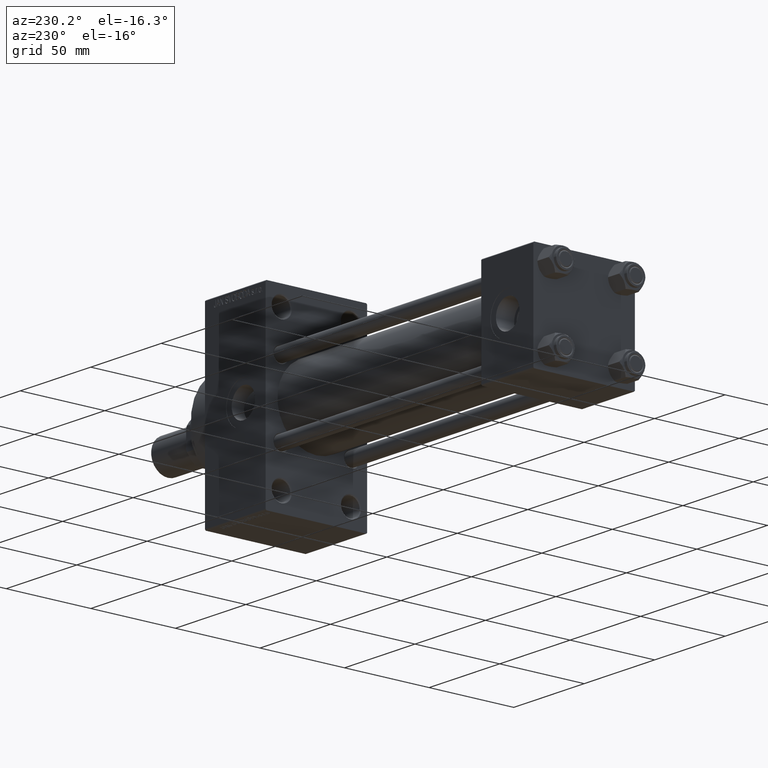
[diagram: clean part render]
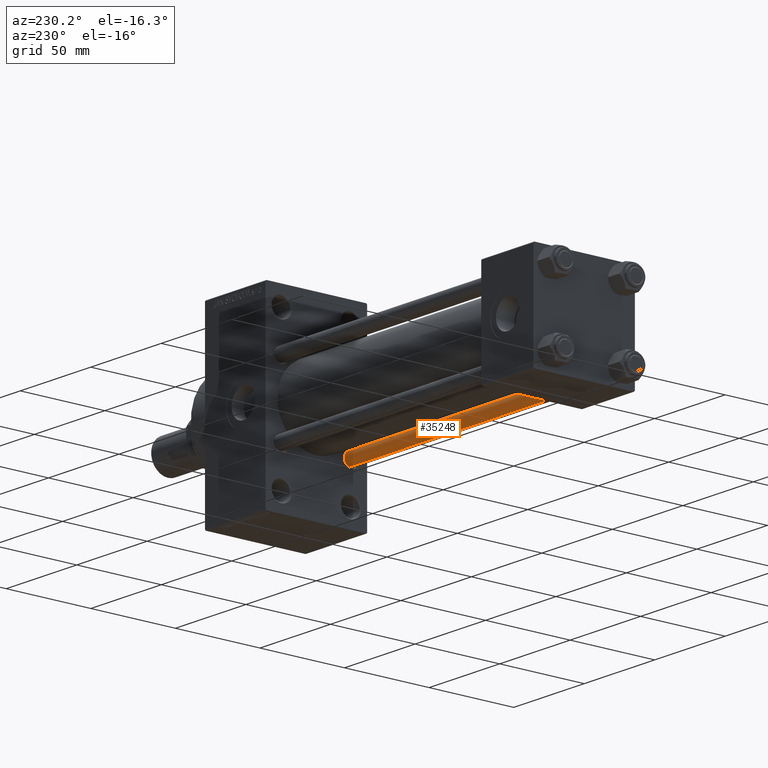
[diagram: same view with one face highlighted and labeled with its STEP entity id]
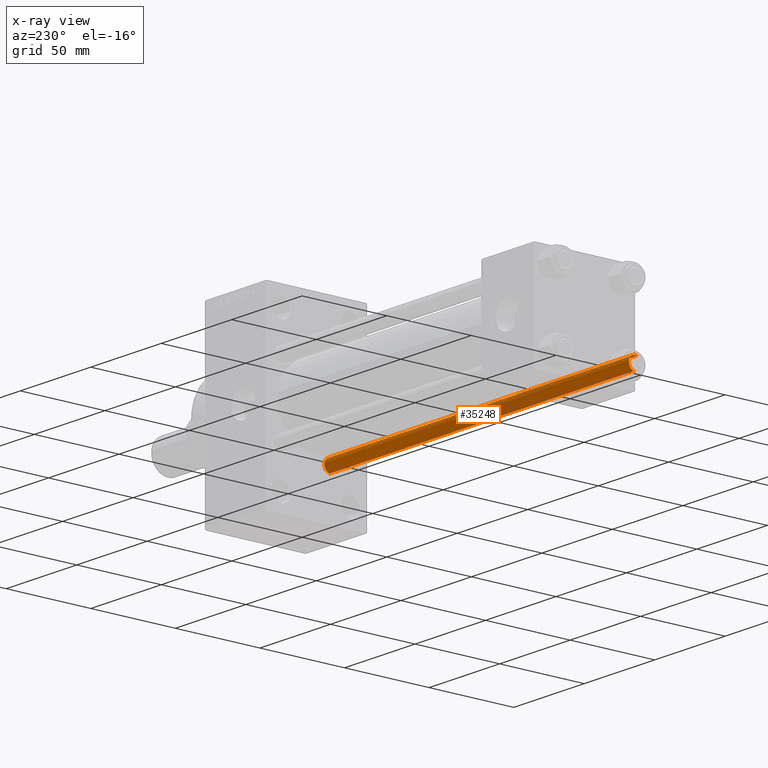
[diagram: x-ray of the same camera — body ghosted, the highlighted face saturated]
A machine part, auxiliary view. The second image highlights one B-rep face of the part: STEP entity #35248.
The next image is the same camera in x-ray: the body ghosted, the highlighted face saturated — about 2% of this face is hidden behind the body in this view.
In plain terms, the highlighted cylindrical surface (edge-blend (fillet) strip) has radius 4 mm, axis along (-1, 0, 0).
Its self-contained STEP definition (entity closure, byte-faithful):
#596 = EDGE_CURVE ( 'NONE', #41019, #8562, #7275, .T. ) ;
#653 = EDGE_CURVE ( 'NONE', #23914, #20469, #35049, .T. ) ;
#2318 = VECTOR ( 'NONE', #10452, 1000.000000000000000 ) ;
#3239 = CARTESIAN_POINT ( 'NONE',  ( 0.000000000000000000, 0.000000000000000000, 0.5000000000000004441 ) ) ;
#3527 = CARTESIAN_POINT ( 'NONE',  ( 4.000000000000000000, 4.898587196589412829E-16, 0.5000000000000004441 ) ) ;
#3778 = LINE ( 'NONE', #43381, #34874 ) ;
#3953 = CARTESIAN_POINT ( 'NONE',  ( -4.000000000000000000, 0.000000000000000000, 216.5000000000000284 ) ) ;
#7091 = DIRECTION ( 'NONE',  ( 1.000000000000000000, 0.000000000000000000, 0.000000000000000000 ) ) ;
#7275 = CIRCLE ( 'NONE', #38133, 4.000000000000000000 ) ;
#8562 = VERTEX_POINT ( 'NONE', #3527 ) ;
#9350 = ORIENTED_EDGE ( 'NONE', *, *, #653, .T. ) ;
#10452 = DIRECTION ( 'NONE',  ( -0.000000000000000000, -0.000000000000000000, -1.000000000000000000 ) ) ;
#12453 = EDGE_CURVE ( 'NONE', #20469, #41019, #28578, .T. ) ;
#12476 = DIRECTION ( 'NONE',  ( -1.000000000000000000, 0.000000000000000000, 0.000000000000000000 ) ) ;
#14178 = AXIS2_PLACEMENT_3D ( 'NONE', #43791, #28370, #7091 ) ;
#14410 = AXIS2_PLACEMENT_3D ( 'NONE', #16337, #23110, #12476 ) ;
#14565 = DIRECTION ( 'NONE',  ( 1.000000000000000000, 0.000000000000000000, 0.000000000000000000 ) ) ;
#16337 = CARTESIAN_POINT ( 'NONE',  ( 0.000000000000000000, 0.000000000000000000, 217.0000000000000000 ) ) ;
#18439 = DIRECTION ( 'NONE',  ( -0.000000000000000000, -0.000000000000000000, 1.000000000000000000 ) ) ;
#20469 = VERTEX_POINT ( 'NONE', #3953 ) ;
#21246 = CARTESIAN_POINT ( 'NONE',  ( -4.000000000000000000, 0.000000000000000000, 0.5000000000000004441 ) ) ;
#22880 = FACE_OUTER_BOUND ( 'NONE', #45502, .T. ) ;
#23110 = DIRECTION ( 'NONE',  ( -0.000000000000000000, -0.000000000000000000, -1.000000000000000000 ) ) ;
#23914 = VERTEX_POINT ( 'NONE', #42130 ) ;
#27441 = ORIENTED_EDGE ( 'NONE', *, *, #596, .T. ) ;
#28370 = DIRECTION ( 'NONE',  ( 0.000000000000000000, 0.000000000000000000, -1.000000000000000000 ) ) ;
#28578 = LINE ( 'NONE', #43775, #2318 ) ;
#30613 = ORIENTED_EDGE ( 'NONE', *, *, #41504, .F. ) ;
#34874 = VECTOR ( 'NONE', #44092, 1000.000000000000000 ) ;
#35049 = CIRCLE ( 'NONE', #14178, 4.000000000000000000 ) ;
#35248 = ADVANCED_FACE ( 'NONE', ( #22880 ), #45327, .T. ) ;
#38133 = AXIS2_PLACEMENT_3D ( 'NONE', #3239, #18439, #14565 ) ;
#41019 = VERTEX_POINT ( 'NONE', #21246 ) ;
#41504 = EDGE_CURVE ( 'NONE', #23914, #8562, #3778, .T. ) ;
#42130 = CARTESIAN_POINT ( 'NONE',  ( 4.000000000000000000, 4.898587196589412829E-16, 216.5000000000000284 ) ) ;
#43381 = CARTESIAN_POINT ( 'NONE',  ( 4.000000000000000000, 4.898587196589412829E-16, 217.0000000000000000 ) ) ;
#43775 = CARTESIAN_POINT ( 'NONE',  ( -4.000000000000000000, 0.000000000000000000, 217.0000000000000000 ) ) ;
#43791 = CARTESIAN_POINT ( 'NONE',  ( 0.000000000000000000, 0.000000000000000000, 216.5000000000000284 ) ) ;
#44092 = DIRECTION ( 'NONE',  ( -0.000000000000000000, -0.000000000000000000, -1.000000000000000000 ) ) ;
#45327 = CYLINDRICAL_SURFACE ( 'NONE', #14410, 4.000000000000000000 ) ;
#45502 = EDGE_LOOP ( 'NONE', ( #30613, #9350, #46407, #27441 ) ) ;
#46407 = ORIENTED_EDGE ( 'NONE', *, *, #12453, .T. ) ;